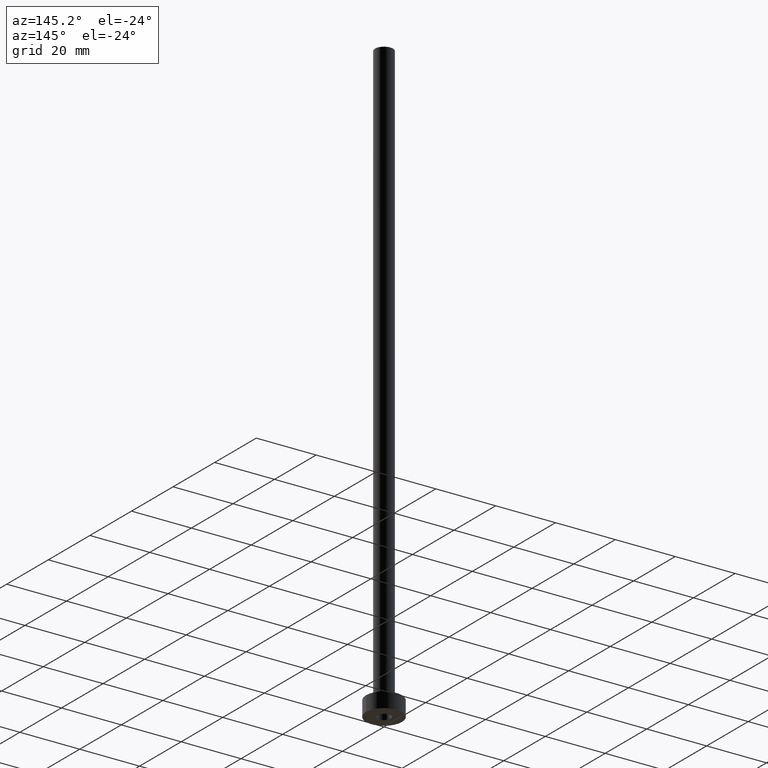
[diagram: clean part render]
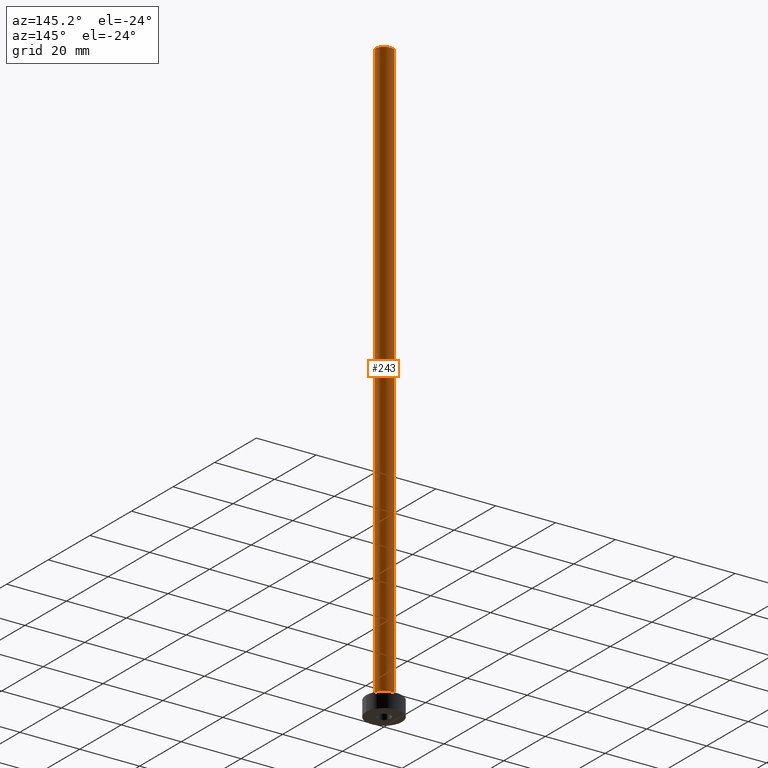
[diagram: same view with one face highlighted and labeled with its STEP entity id]
A machine part, auxiliary view. The second image highlights one B-rep face of the part: STEP entity #243.
In plain terms, the highlighted cylindrical surface (edge-blend (fillet) strip) has radius 3 mm, axis along (-0, -0, -1).
Its self-contained STEP definition (entity closure, byte-faithful):
#2 = CARTESIAN_POINT ( 'NONE',  ( 0.000000000000000000, 0.000000000000000000, 5.500000000000005329 ) ) ;
#7 = LINE ( 'NONE', #283, #454 ) ;
#15 = DIRECTION ( 'NONE',  ( -1.000000000000000000, 0.000000000000000000, 0.000000000000000000 ) ) ;
#17 = ORIENTED_EDGE ( 'NONE', *, *, #77, .T. ) ;
#22 = CIRCLE ( 'NONE', #185, 3.000000000000000444 ) ;
#47 = DIRECTION ( 'NONE',  ( 0.000000000000000000, 0.000000000000000000, 1.000000000000000000 ) ) ;
#68 = EDGE_CURVE ( 'NONE', #329, #259, #383, .T. ) ;
#77 = EDGE_CURVE ( 'NONE', #86, #439, #7, .T. ) ;
#82 = CARTESIAN_POINT ( 'NONE',  ( -3.000000000000000444, 0.000000000000000000, 5.500000000000005329 ) ) ;
#86 = VERTEX_POINT ( 'NONE', #322 ) ;
#104 = AXIS2_PLACEMENT_3D ( 'NONE', #216, #47, #188 ) ;
#118 = CARTESIAN_POINT ( 'NONE',  ( 0.000000000000000000, 0.000000000000000000, 200.0000000000000000 ) ) ;
#136 = ORIENTED_EDGE ( 'NONE', *, *, #68, .F. ) ;
#144 = CYLINDRICAL_SURFACE ( 'NONE', #264, 3.000000000000000444 ) ;
#146 = EDGE_CURVE ( 'NONE', #86, #329, #377, .T. ) ;
#166 = CARTESIAN_POINT ( 'NONE',  ( -3.000000000000000444, 0.000000000000000000, 200.0000000000000000 ) ) ;
#185 = AXIS2_PLACEMENT_3D ( 'NONE', #2, #389, #336 ) ;
#188 = DIRECTION ( 'NONE',  ( 1.000000000000000000, 0.000000000000000000, 0.000000000000000000 ) ) ;
#192 = ORIENTED_EDGE ( 'NONE', *, *, #297, .T. ) ;
#216 = CARTESIAN_POINT ( 'NONE',  ( 0.000000000000000000, 0.000000000000000000, 200.0000000000000000 ) ) ;
#239 = CARTESIAN_POINT ( 'NONE',  ( 3.000000000000000444, 3.673940397442060361E-16, 5.500000000000005329 ) ) ;
#243 = ADVANCED_FACE ( 'NONE', ( #426 ), #144, .T. ) ;
#259 = VERTEX_POINT ( 'NONE', #82 ) ;
#260 = DIRECTION ( 'NONE',  ( -0.000000000000000000, -0.000000000000000000, -1.000000000000000000 ) ) ;
#264 = AXIS2_PLACEMENT_3D ( 'NONE', #118, #260, #15 ) ;
#283 = CARTESIAN_POINT ( 'NONE',  ( 3.000000000000000444, 3.673940397442060361E-16, 200.0000000000000000 ) ) ;
#297 = EDGE_CURVE ( 'NONE', #439, #259, #22, .T. ) ;
#320 = DIRECTION ( 'NONE',  ( -0.000000000000000000, -0.000000000000000000, -1.000000000000000000 ) ) ;
#322 = CARTESIAN_POINT ( 'NONE',  ( 3.000000000000000444, 3.673940397442060361E-16, 200.0000000000000000 ) ) ;
#329 = VERTEX_POINT ( 'NONE', #166 ) ;
#336 = DIRECTION ( 'NONE',  ( 1.000000000000000000, 0.000000000000000000, 0.000000000000000000 ) ) ;
#377 = CIRCLE ( 'NONE', #104, 3.000000000000000444 ) ;
#380 = VECTOR ( 'NONE', #460, 1000.000000000000000 ) ;
#383 = LINE ( 'NONE', #388, #380 ) ;
#388 = CARTESIAN_POINT ( 'NONE',  ( -3.000000000000000444, 0.000000000000000000, 200.0000000000000000 ) ) ;
#389 = DIRECTION ( 'NONE',  ( 0.000000000000000000, 0.000000000000000000, 1.000000000000000000 ) ) ;
#391 = EDGE_LOOP ( 'NONE', ( #422, #17, #192, #136 ) ) ;
#422 = ORIENTED_EDGE ( 'NONE', *, *, #146, .F. ) ;
#426 = FACE_OUTER_BOUND ( 'NONE', #391, .T. ) ;
#439 = VERTEX_POINT ( 'NONE', #239 ) ;
#454 = VECTOR ( 'NONE', #320, 1000.000000000000000 ) ;
#460 = DIRECTION ( 'NONE',  ( -0.000000000000000000, -0.000000000000000000, -1.000000000000000000 ) ) ;